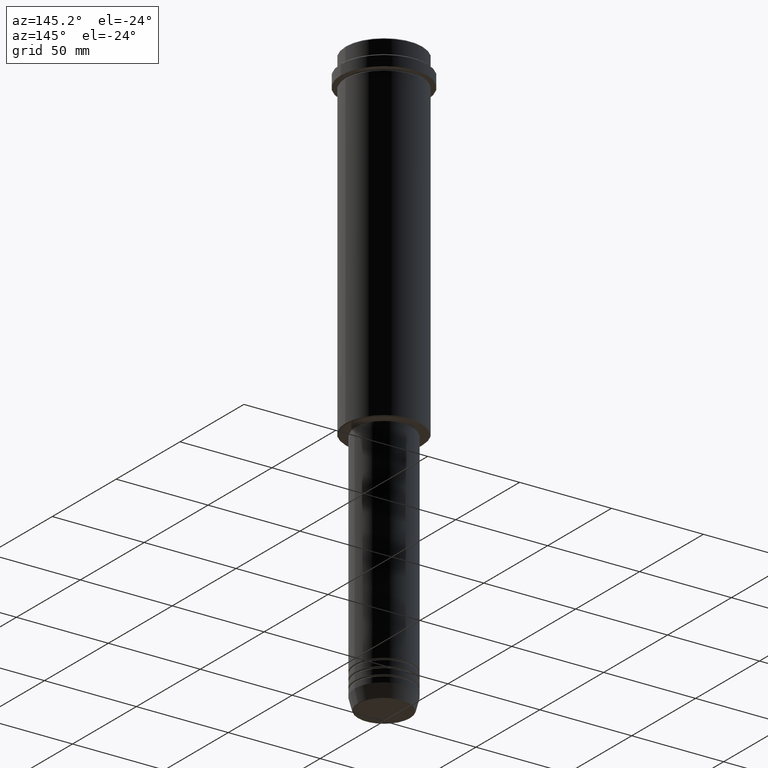
[diagram: clean part render]
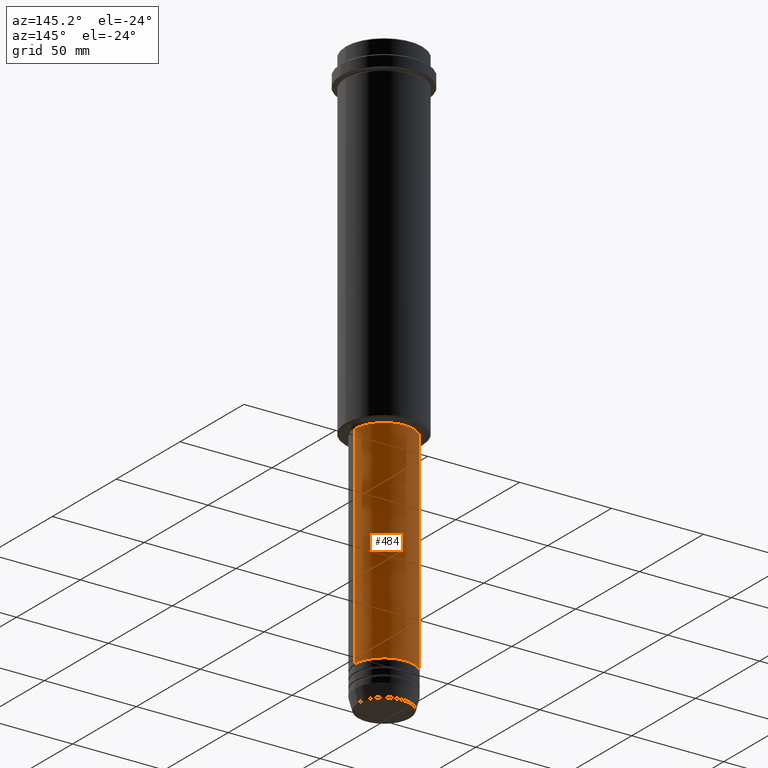
[diagram: same view with one face highlighted and labeled with its STEP entity id]
A machine part, auxiliary view. The second image highlights one B-rep face of the part: STEP entity #484.
In plain terms, the highlighted cylindrical surface (edge-blend (fillet) strip) has radius 16 mm, axis along (-0, -0, 1).
Its self-contained STEP definition (entity closure, byte-faithful):
#46 = DIRECTION ( 'NONE',  ( -0.000000000000000000, -0.000000000000000000, 1.000000000000000000 ) ) ;
#71 = CARTESIAN_POINT ( 'NONE',  ( 0.000000000000000000, 0.000000000000000000, -185.9999999999999147 ) ) ;
#97 = CARTESIAN_POINT ( 'NONE',  ( -16.00000000000000355, 1.959434878635765526E-15, -185.9999999999999147 ) ) ;
#152 = ORIENTED_EDGE ( 'NONE', *, *, #564, .T. ) ;
#190 = EDGE_CURVE ( 'NONE', #1258, #820, #676, .T. ) ;
#238 = FACE_OUTER_BOUND ( 'NONE', #245, .T. ) ;
#245 = EDGE_LOOP ( 'NONE', ( #344, #152, #785, #808 ) ) ;
#271 = LINE ( 'NONE', #809, #704 ) ;
#284 = CARTESIAN_POINT ( 'NONE',  ( 16.00000000000000000, 0.000000000000000000, -300.9999999999998863 ) ) ;
#307 = DIRECTION ( 'NONE',  ( 1.000000000000000000, 0.000000000000000000, 0.000000000000000000 ) ) ;
#328 = CIRCLE ( 'NONE', #350, 16.00000000000000355 ) ;
#330 = DIRECTION ( 'NONE',  ( -0.000000000000000000, -0.000000000000000000, 1.000000000000000000 ) ) ;
#336 = CARTESIAN_POINT ( 'NONE',  ( 16.00000000000000355, 0.000000000000000000, -185.9999999999999147 ) ) ;
#344 = ORIENTED_EDGE ( 'NONE', *, *, #190, .T. ) ;
#350 = AXIS2_PLACEMENT_3D ( 'NONE', #71, #1182, #949 ) ;
#370 = VECTOR ( 'NONE', #1317, 1000.000000000000000 ) ;
#424 = CARTESIAN_POINT ( 'NONE',  ( 16.00000000000000000, 0.000000000000000000, 0.000000000000000000 ) ) ;
#484 = ADVANCED_FACE ( 'NONE', ( #238 ), #772, .T. ) ;
#514 = CARTESIAN_POINT ( 'NONE',  ( 0.000000000000000000, 0.000000000000000000, -300.9999999999998863 ) ) ;
#564 = EDGE_CURVE ( 'NONE', #820, #1283, #271, .T. ) ;
#632 = AXIS2_PLACEMENT_3D ( 'NONE', #514, #1275, #307 ) ;
#664 = LINE ( 'NONE', #424, #370 ) ;
#676 = CIRCLE ( 'NONE', #632, 16.00000000000000000 ) ;
#695 = EDGE_CURVE ( 'NONE', #868, #1283, #328, .T. ) ;
#704 = VECTOR ( 'NONE', #46, 1000.000000000000000 ) ;
#772 = CYLINDRICAL_SURFACE ( 'NONE', #1002, 16.00000000000000000 ) ;
#779 = CARTESIAN_POINT ( 'NONE',  ( -16.00000000000000000, 1.959434878635765131E-15, -300.9999999999998863 ) ) ;
#785 = ORIENTED_EDGE ( 'NONE', *, *, #695, .F. ) ;
#808 = ORIENTED_EDGE ( 'NONE', *, *, #816, .F. ) ;
#809 = CARTESIAN_POINT ( 'NONE',  ( -16.00000000000000000, 1.959434878635765131E-15, 0.000000000000000000 ) ) ;
#816 = EDGE_CURVE ( 'NONE', #1258, #868, #664, .T. ) ;
#820 = VERTEX_POINT ( 'NONE', #779 ) ;
#868 = VERTEX_POINT ( 'NONE', #336 ) ;
#949 = DIRECTION ( 'NONE',  ( 1.000000000000000000, 0.000000000000000000, 0.000000000000000000 ) ) ;
#988 = CARTESIAN_POINT ( 'NONE',  ( 0.000000000000000000, 0.000000000000000000, 0.000000000000000000 ) ) ;
#1002 = AXIS2_PLACEMENT_3D ( 'NONE', #988, #330, #1311 ) ;
#1182 = DIRECTION ( 'NONE',  ( -0.000000000000000000, -0.000000000000000000, 1.000000000000000000 ) ) ;
#1258 = VERTEX_POINT ( 'NONE', #284 ) ;
#1275 = DIRECTION ( 'NONE',  ( -0.000000000000000000, -0.000000000000000000, 1.000000000000000000 ) ) ;
#1283 = VERTEX_POINT ( 'NONE', #97 ) ;
#1311 = DIRECTION ( 'NONE',  ( 1.000000000000000000, 0.000000000000000000, 0.000000000000000000 ) ) ;
#1317 = DIRECTION ( 'NONE',  ( -0.000000000000000000, -0.000000000000000000, 1.000000000000000000 ) ) ;